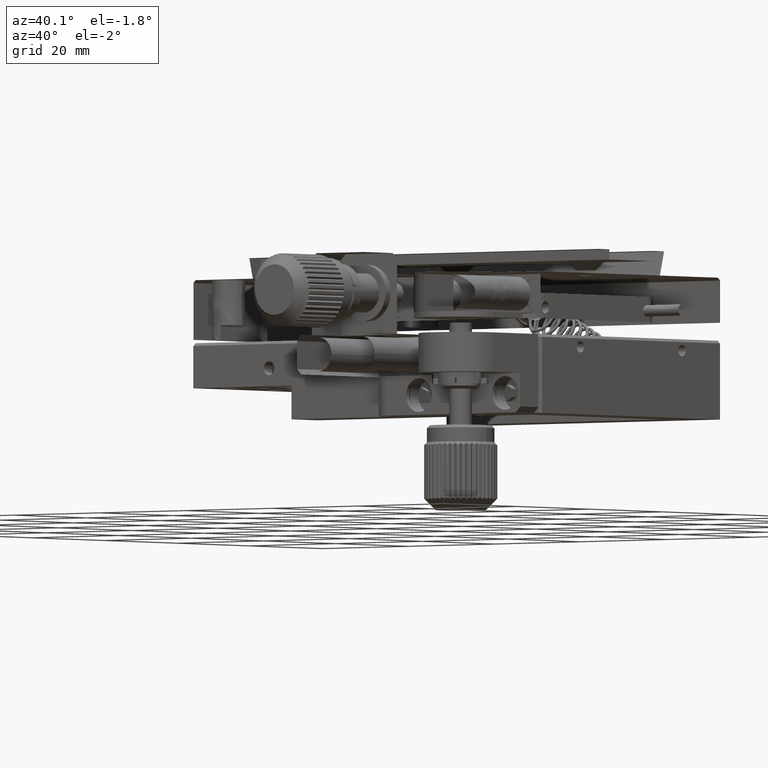
[diagram: clean part render]
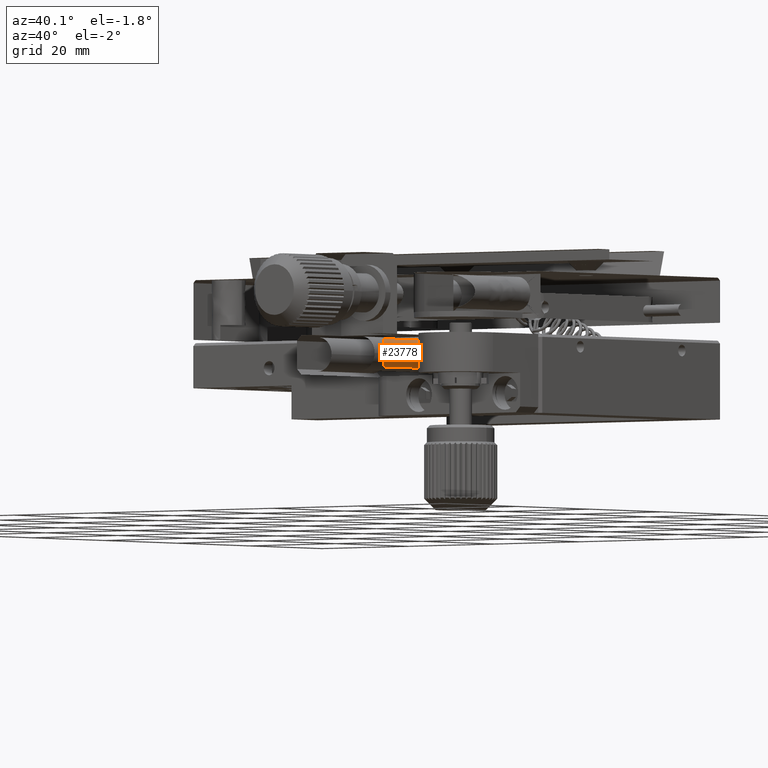
[diagram: same view with one face highlighted and labeled with its STEP entity id]
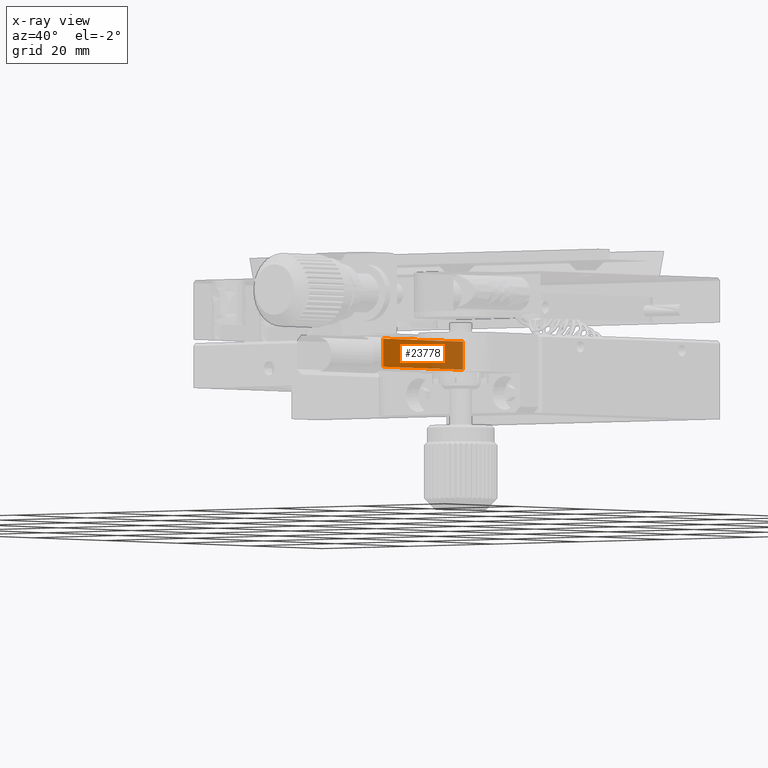
[diagram: x-ray of the same camera — body ghosted, the highlighted face saturated]
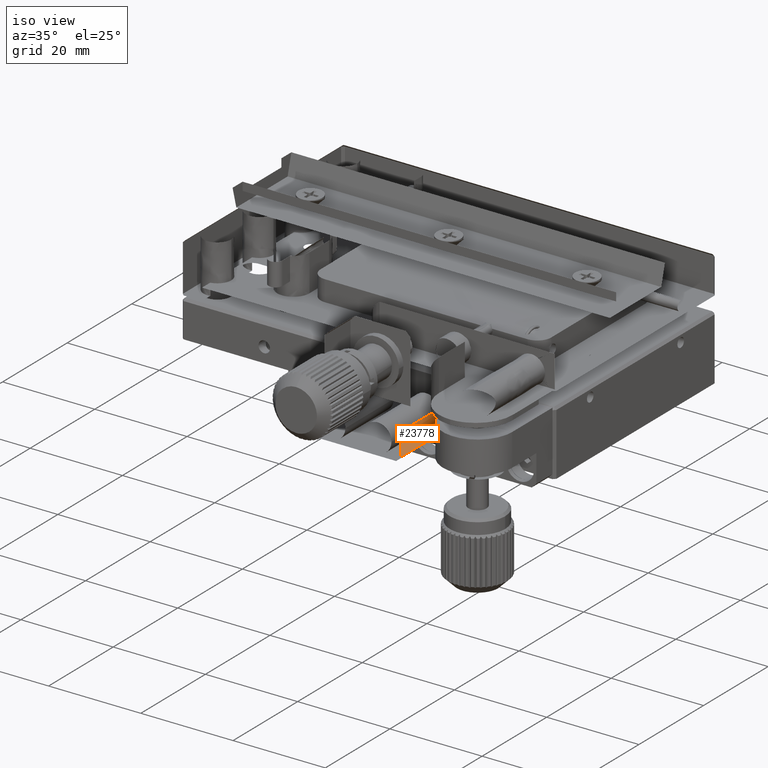
[diagram: same view with one face highlighted and labeled with its STEP entity id]
A machine part, auxiliary view. The second image highlights one B-rep face of the part: STEP entity #23778.
The next image is the same camera in x-ray: the body ghosted, the highlighted face saturated — about 38% of this face is hidden behind the body in this view.
A second angle (iso view) of the same face is appended — the face is thin or edge-on in the first view.
In plain terms, the highlighted face is a freeform B-spline surface patch.
Its self-contained STEP definition (entity closure, byte-faithful):
#913 = B_SPLINE_CURVE_WITH_KNOTS ( 'NONE', 1,
 ( #18490, #29712 ),
 .UNSPECIFIED., .F., .F.,
 ( 2, 2 ),
 ( -1.000000000000000000, 0.000000000000000000 ),
 .UNSPECIFIED. ) ;
#1891 = VERTEX_POINT ( 'NONE', #12013 ) ;
#3043 = EDGE_LOOP ( 'NONE', ( #32908, #35752, #9834, #5949 ) ) ;
#4309 = CARTESIAN_POINT ( 'NONE',  ( 29.75667729595610211, -53.44081999257650040, -0.1959899317161964971 ) ) ;
#4439 = B_SPLINE_CURVE_WITH_KNOTS ( 'NONE', 1,
 ( #35119, #4309 ),
 .UNSPECIFIED., .F., .F.,
 ( 2, 2 ),
 ( -1.000000000000000000, 0.000000000000000000 ),
 .UNSPECIFIED. ) ;
#5104 = CARTESIAN_POINT ( 'NONE',  ( 29.75667729595610211, -53.44081999257650040, 4.804010068283779411 ) ) ;
#5949 = ORIENTED_EDGE ( 'NONE', *, *, #20966, .T. ) ;
#6727 = VERTEX_POINT ( 'NONE', #26262 ) ;
#8300 = CARTESIAN_POINT ( 'NONE',  ( 29.75667729595610211, -31.44081999257650040, 4.804010068283779411 ) ) ;
#9834 = ORIENTED_EDGE ( 'NONE', *, *, #25134, .F. ) ;
#10368 = EDGE_CURVE ( 'NONE', #24068, #6727, #4439, .T. ) ;
#11623 = CARTESIAN_POINT ( 'NONE',  ( 29.75667729595610211, -31.44081999257650040, -0.1959899317161964971 ) ) ;
#11648 = VERTEX_POINT ( 'NONE', #33639 ) ;
#12013 = CARTESIAN_POINT ( 'NONE',  ( 29.75667729595610211, -53.44081999257650040, 4.804010068283779411 ) ) ;
#14045 = EDGE_CURVE ( 'NONE', #6727, #1891, #913, .T. ) ;
#18490 = CARTESIAN_POINT ( 'NONE',  ( 29.75667729595610211, -53.44081999257650040, -0.1959899317161964971 ) ) ;
#19972 = B_SPLINE_SURFACE_WITH_KNOTS ( 'NONE', 1, 1, ( 
 ( #34258, #20098 ),
 ( #8300, #25795 ) ),
 .UNSPECIFIED., .F., .F., .F.,
 ( 2, 2 ),
 ( 2, 2 ),
 ( 0.000000000000000000, 1.000000000000000000 ),
 ( 0.000000000000000000, 1.000000000000000000 ),
 .UNSPECIFIED. ) ;
#20098 = CARTESIAN_POINT ( 'NONE',  ( 29.75667729595610211, -53.44081999257650040, -0.1959899317161970245 ) ) ;
#20966 = EDGE_CURVE ( 'NONE', #11648, #24068, #25850, .T. ) ;
#23335 = CARTESIAN_POINT ( 'NONE',  ( 29.75667729595610211, -31.44081999257650040, -0.1959899317161964971 ) ) ;
#23778 = ADVANCED_FACE ( 'NONE', ( #31137 ), #19972, .T. ) ;
#23876 = B_SPLINE_CURVE_WITH_KNOTS ( 'NONE', 1,
 ( #30001, #5104 ),
 .UNSPECIFIED., .F., .F.,
 ( 2, 2 ),
 ( 0.000000000000000000, 1.000000000000000000 ),
 .UNSPECIFIED. ) ;
#24068 = VERTEX_POINT ( 'NONE', #23335 ) ;
#25134 = EDGE_CURVE ( 'NONE', #11648, #1891, #23876, .T. ) ;
#25795 = CARTESIAN_POINT ( 'NONE',  ( 29.75667729595610211, -31.44081999257650040, -0.1959899317161970245 ) ) ;
#25850 = B_SPLINE_CURVE_WITH_KNOTS ( 'NONE', 1,
 ( #27854, #11623 ),
 .UNSPECIFIED., .F., .F.,
 ( 2, 2 ),
 ( 0.000000000000000000, 1.000000000000000000 ),
 .UNSPECIFIED. ) ;
#26262 = CARTESIAN_POINT ( 'NONE',  ( 29.75667729595610211, -53.44081999257650040, -0.1959899317161964971 ) ) ;
#27854 = CARTESIAN_POINT ( 'NONE',  ( 29.75667729595610211, -31.44081999257650040, 4.804010068283779411 ) ) ;
#29712 = CARTESIAN_POINT ( 'NONE',  ( 29.75667729595610211, -53.44081999257650040, 4.804010068283779411 ) ) ;
#30001 = CARTESIAN_POINT ( 'NONE',  ( 29.75667729595610211, -31.44081999257650040, 4.804010068283779411 ) ) ;
#31137 = FACE_OUTER_BOUND ( 'NONE', #3043, .T. ) ;
#32908 = ORIENTED_EDGE ( 'NONE', *, *, #10368, .T. ) ;
#33639 = CARTESIAN_POINT ( 'NONE',  ( 29.75667729595610211, -31.44081999257650040, 4.804010068283779411 ) ) ;
#34258 = CARTESIAN_POINT ( 'NONE',  ( 29.75667729595610211, -53.44081999257650040, 4.804010068283779411 ) ) ;
#35119 = CARTESIAN_POINT ( 'NONE',  ( 29.75667729595610211, -31.44081999257650040, -0.1959899317161964971 ) ) ;
#35752 = ORIENTED_EDGE ( 'NONE', *, *, #14045, .T. ) ;